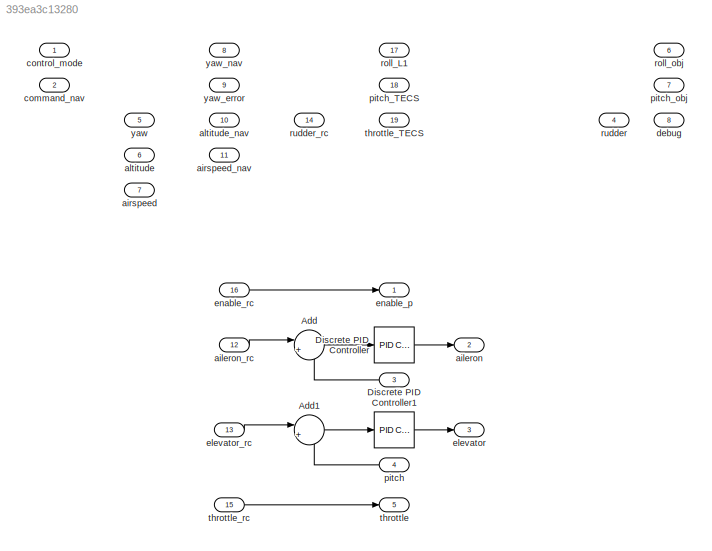
MODEL slx_393ea3c13280
KIND model
CONFIG AbsTol = auto
CONFIG EnableMultiTasking = off
CONFIG FixedStep = 1/50
CONFIG MaxStep = auto
CONFIG MinStep = auto
CONFIG RelTol = 1e-3
CONFIG SampleTimeConstraint = Unconstrained
CONFIG SolverName = FixedStepDiscrete
CONFIG StartTime = 0.0
CONFIG StopTime = 10.0
BLOCK [Sum] Add
  Inputs = |+-
BLOCK [Sum] Add1
  Inputs = |+-
BLOCK [Reference] Discrete PID Controller  REF=slpidlib/PID Controller
  LibrarySourceBlock = simulink/Discrete/Discrete PID Controller
  SourceBlock = slpidlib/PID Controller
  SourceType = PID 1dof
BLOCK [Reference] Discrete PID Controller1  REF=slpidlib/PID Controller
  LibrarySourceBlock = simulink/Discrete/Discrete PID Controller
  SourceBlock = slpidlib/PID Controller
  SourceType = PID 1dof
BLOCK [Outport] aileron
  Port = 2
BLOCK [Inport] aileron_rc
  Port = 12
BLOCK [Inport] airspeed
  Port = 7
BLOCK [Inport] airspeed_nav
  Port = 11
BLOCK [Inport] altitude
  Port = 6
BLOCK [Inport] altitude_nav
  Port = 10
BLOCK [Inport] command_nav
  Port = 2
BLOCK [Inport] control_mode
BLOCK [Outport] debug
  Port = 8
BLOCK [Outport] elevator
  Port = 3
BLOCK [Inport] elevator_rc
  Port = 13
BLOCK [Outport] enable_p
  OutDataTypeStr = boolean
BLOCK [Inport] enable_rc
  OutDataTypeStr = boolean
  Port = 16
BLOCK [Inport] pitch
  Port = 4
BLOCK [Inport] pitch_TECS
  Port = 18
BLOCK [Outport] pitch_obj
  Port = 7
BLOCK [Inport] roll
  Port = 3
BLOCK [Inport] roll_L1
  Port = 17
BLOCK [Outport] roll_obj
  Port = 6
BLOCK [Outport] rudder
  Port = 4
BLOCK [Inport] rudder_rc
  Port = 14
BLOCK [Outport] throttle
  Port = 5
BLOCK [Inport] throttle_TECS
  Port = 19
BLOCK [Inport] throttle_rc
  Port = 15
BLOCK [Inport] yaw
  Port = 5
BLOCK [Inport] yaw_error
  Port = 9
BLOCK [Inport] yaw_nav
  Port = 8
LINE Add1:1 -> Discrete PID Controller1:1
LINE Add:1 -> Discrete PID Controller:1
LINE Discrete PID Controller1:1 -> elevator:1
LINE Discrete PID Controller:1 -> aileron:1
LINE aileron_rc:1 -> Add:1
LINE elevator_rc:1 -> Add1:1
LINE enable_rc:1 -> enable_p:1
LINE pitch:1 -> Add1:2
LINE roll:1 -> Add:2
LINE throttle_rc:1 -> throttle:1
